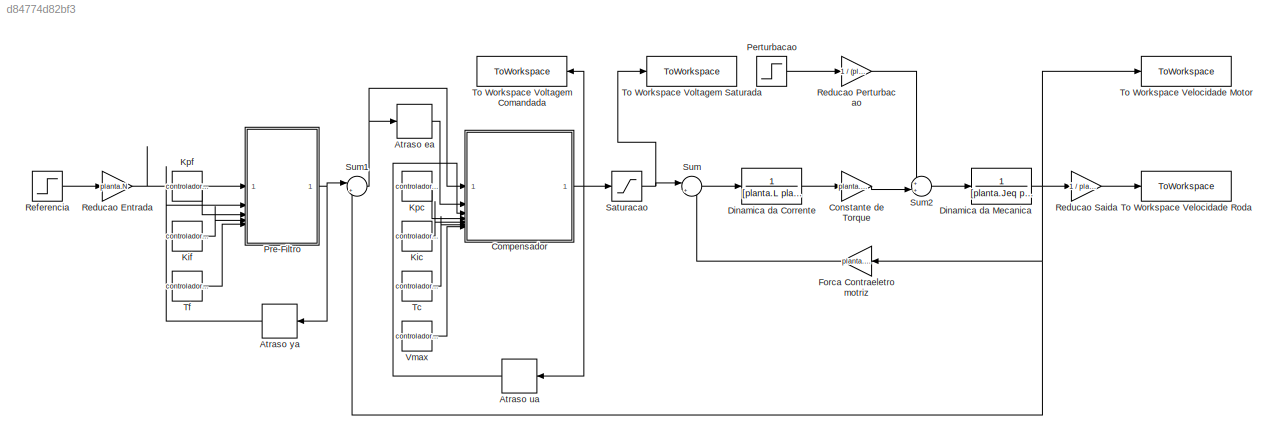
MODEL slx_d84774d82bf3
KIND model
CONFIG AbsTol = auto
CONFIG EnableMultiTasking = off
CONFIG FixedStep = 1e-4
CONFIG MaxStep = auto
CONFIG MinStep = auto
CONFIG RelTol = 1e-3
CONFIG SampleTimeConstraint = Unconstrained
CONFIG SolverName = FixedStepAuto
CONFIG StartTime = 0.0
CONFIG StopTime = tempoSimulacao
BLOCK [Delay] Atraso ea
  DelayLength = 1
  InitialCondition = 0
  InputPortMap = u0
  SampleTime = controlador.T
BLOCK [Delay] Atraso ua
  DelayLength = 1
  InitialCondition = 0
  InputPortMap = u0
  SampleTime = controlador.T
BLOCK [Delay] Atraso ya
  DelayLength = 1
  InitialCondition = 0
  InputPortMap = u0
  SampleTime = controlador.T
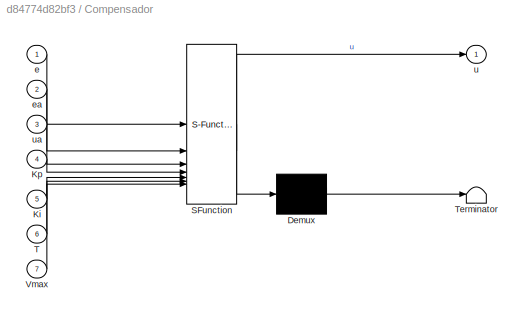
BLOCK [SubSystem] Compensador
  ErrorFcn = Stateflow.Translate.translate
  PermitHierarchicalResolution = ExplicitOnly
  SFBlockType = MATLAB Function
  SystemSampleTime = controlador.T
  TreatAsAtomicUnit = on
BLOCK [Demux] Compensador/ Demux 
  Outputs = 1
BLOCK [S-Function] Compensador/ SFunction 
  EnableBusSupport = on
  FunctionName = sf_sfun
  PortCounts = [7 2]
  SFcnIsStateOwnerBlock = off
  SFunctionDeploymentMode = off
  Tag = Stateflow S-Function 2
BLOCK [Terminator] Compensador/ Terminator 
BLOCK [Inport] Compensador/Ki
  Port = 5
BLOCK [Inport] Compensador/Kp
  Port = 4
BLOCK [Inport] Compensador/T
  Port = 6
BLOCK [Inport] Compensador/Vmax
  Port = 7
BLOCK [Inport] Compensador/e
BLOCK [Inport] Compensador/ea
  Port = 2
BLOCK [Outport] Compensador/u
BLOCK [Inport] Compensador/ua
  Port = 3
BLOCK [Gain] Constante de Torque
  Gain = planta.Kt
BLOCK [TransferFcn] Dinamica da Corrente
  Denominator = [planta.L planta.R]
  Numerator = 1
BLOCK [TransferFcn] Dinamica da Mecanica
  Denominator = [planta.Jeq planta.Beq]
  Numerator = 1
BLOCK [Gain] Forca Contraeletromotriz
  Gain = planta.Kt
BLOCK [Constant] Kic
  Value = controlador.Ki
BLOCK [Constant] Kif
  Value = controlador.Ki
BLOCK [Constant] Kpc
  Value = controlador.Kp
BLOCK [Constant] Kpf
  Value = controlador.Kp
BLOCK [Step] Perturbacao
  After = disturbio.amplitude
  SampleTime = 0
  Time = disturbio.instante
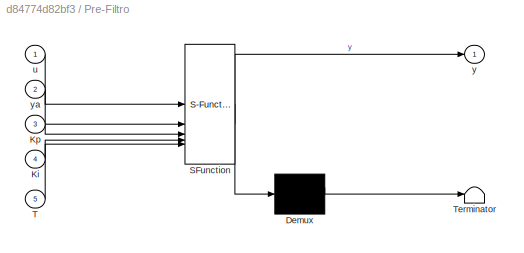
BLOCK [SubSystem] Pre-Filtro
  ErrorFcn = Stateflow.Translate.translate
  PermitHierarchicalResolution = ExplicitOnly
  SFBlockType = MATLAB Function
  SystemSampleTime = controlador.T
  TreatAsAtomicUnit = on
BLOCK [Demux] Pre-Filtro/ Demux 
  Outputs = 1
BLOCK [S-Function] Pre-Filtro/ SFunction 
  EnableBusSupport = on
  FunctionName = sf_sfun
  PortCounts = [5 2]
  SFcnIsStateOwnerBlock = off
  SFunctionDeploymentMode = off
  Tag = Stateflow S-Function 1
BLOCK [Terminator] Pre-Filtro/ Terminator 
BLOCK [Inport] Pre-Filtro/Ki
  Port = 4
BLOCK [Inport] Pre-Filtro/Kp
  Port = 3
BLOCK [Inport] Pre-Filtro/T
  Port = 5
BLOCK [Inport] Pre-Filtro/u
BLOCK [Outport] Pre-Filtro/y
BLOCK [Inport] Pre-Filtro/ya
  Port = 2
BLOCK [Gain] Reducao Entrada
  Gain = planta.N
BLOCK [Gain] Reducao Perturbacao
  Gain = 1 / (planta.N * planta.eta)
BLOCK [Gain] Reducao Saida
  Gain = 1 / planta.N
BLOCK [Step] Referencia
  After = referencia.amplitude
  SampleTime = 0
  Time = referencia.instante
BLOCK [Saturate] Saturacao
  LowerLimit = -planta.Vmax
  UpperLimit = planta.Vmax
BLOCK [Sum] Sum
  Inputs = |+-
BLOCK [Sum] Sum1
  Inputs = |+-
BLOCK [Sum] Sum2
  Inputs = ++|
BLOCK [Constant] Tc
  Value = controlador.T
BLOCK [Constant] Tf
  Value = controlador.T
BLOCK [ToWorkspace] To Workspace Velocidade Motor
  FixptAsFi = on
  MaxDataPoints = inf
  SampleTime = 1e-4
  SaveFormat = Structure With Time
  VariableName = wMotor
BLOCK [ToWorkspace] To Workspace Velocidade Roda
  FixptAsFi = on
  MaxDataPoints = inf
  SampleTime = 1e-4
  SaveFormat = Structure With Time
  VariableName = wRoda
BLOCK [ToWorkspace] To Workspace Voltagem Comandada
  FixptAsFi = on
  MaxDataPoints = inf
  NameLocation = top
  SampleTime = 1e-4
  SaveFormat = Structure With Time
  VariableName = V
BLOCK [ToWorkspace] To Workspace Voltagem Saturada
  FixptAsFi = on
  MaxDataPoints = inf
  SampleTime = 1e-4
  SaveFormat = Structure With Time
  VariableName = Vsat
BLOCK [Constant] Vmax
  Value = controlador.Vmax
LINE Atraso ea:1 -> Compensador:2
LINE Atraso ua:1 -> Compensador:3
LINE Atraso ya:1 -> Pre-Filtro:2
NET Compensador:1 -> Atraso ua:1, Saturacao:1, To Workspace Voltagem Comandada:1
LINE Constante de Torque:1 -> Sum2:2
LINE Dinamica da Corrente:1 -> Constante de Torque:1
NET Dinamica da Mecanica:1 -> Forca Contraeletromotriz:1, Reducao Saida:1, Sum1:2, To Workspace Velocidade Motor:1
LINE Forca Contraeletromotriz:1 -> Sum:2
LINE Kic:1 -> Compensador:5
LINE Kif:1 -> Pre-Filtro:4
LINE Kpc:1 -> Compensador:4
LINE Kpf:1 -> Pre-Filtro:3
LINE Perturbacao:1 -> Reducao Perturbacao:1
NET Pre-Filtro:1 -> Atraso ya:1, Sum1:1
LINE Reducao Entrada:1 -> Pre-Filtro:1
LINE Reducao Perturbacao:1 -> Sum2:1
LINE Reducao Saida:1 -> To Workspace Velocidade Roda:1
LINE Referencia:1 -> Reducao Entrada:1
NET Saturacao:1 -> Sum:1, To Workspace Voltagem Saturada:1
NET Sum1:1 -> Atraso ea:1, Compensador:1
LINE Sum2:1 -> Dinamica da Mecanica:1
LINE Sum:1 -> Dinamica da Corrente:1
LINE Tc:1 -> Compensador:6
LINE Tf:1 -> Pre-Filtro:5
LINE Vmax:1 -> Compensador:7
note: NET lines group one-source signal fan-out (src -> all destinations, sorted); 1:1 wires keep LINE
CHART Pre-Filtro states=1 transitions=1
  STATE_LABEL 'eML_blk_kernel()'
  STATE_LABEL 'SCRIPT:\nfunction y = preFiltro(u, ya, Kp, Ki, T)\n% Implementa o pre-filtro discreto.\n% Entradas:\n% u: entrada atual u[k].\n% ya: saida anterior y[k-1].\n% Kp: ganho proporcional.\n% Ki: ganho integrativo.\n% T: tempo de amostragem.\n% Saidas:\n% y: saida atual y[k].\n\ny = (ya + (Ki / Kp) * T * u) / (1 + (Ki / Kp) * T);\n\nend'
CHART Compensador states=1 transitions=1
  STATE_LABEL 'eML_blk_kernel()'
  STATE_LABEL 'SCRIPT:\nfunction u = compensador(e, ea, ua, Kp, Ki, T, Vmax)\n% u = compensador(e, ea, ua, Kp, Ki, T, Vmax)\n% Implementa o compensador PI discreto.\n% Entradas:\n% e: erro atual e[k].\n% ea: erro anterior e[k-1].\n% ua: comando anterior u[k-1].\n% Kp: ganho proporcional.\n% Ki: ganho integrativo.\n% T: tempo de amostragem.\n% Vmax: limite de tensao.\n% Saidas:\n% u: comando atual u[k].\n\nu = ua + (Kp + Ki * T...<+117ch>'
CHART  states=0 transitions=0
CHART  states=0 transitions=0
